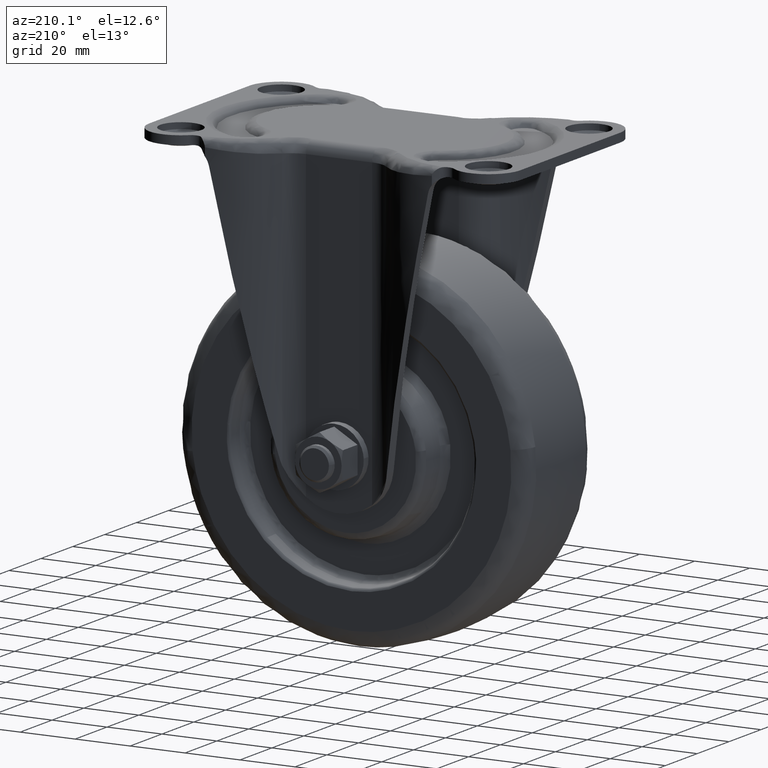
[diagram: clean part render]
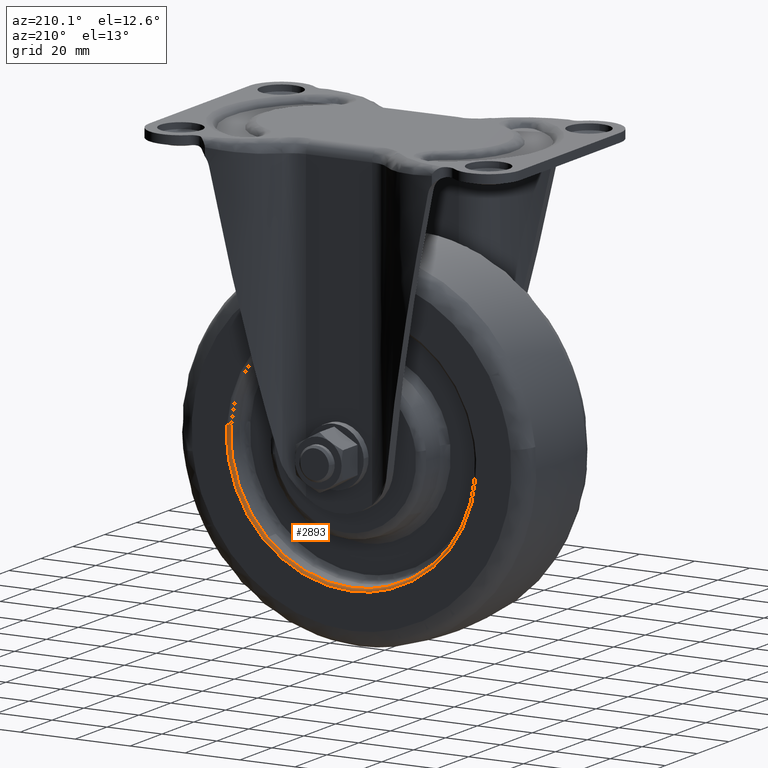
[diagram: same view with one face highlighted and labeled with its STEP entity id]
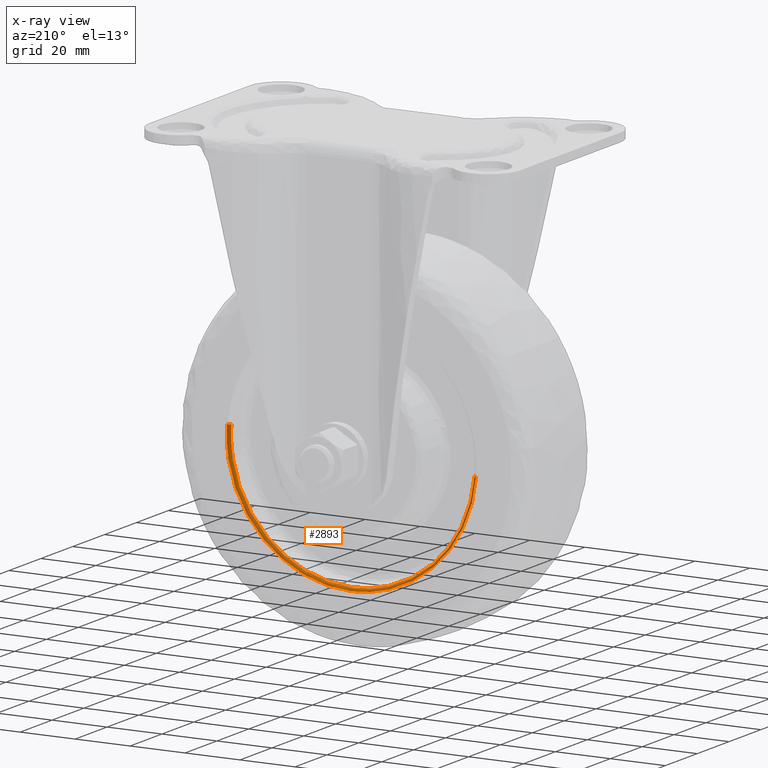
[diagram: x-ray of the same camera — body ghosted, the highlighted face saturated]
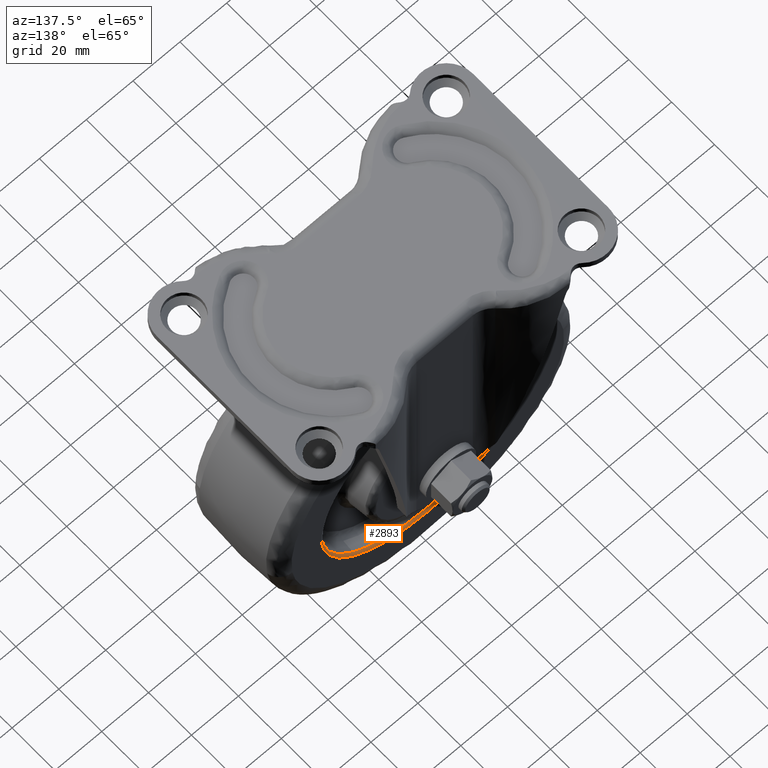
[diagram: same view with one face highlighted and labeled with its STEP entity id]
A machine part, auxiliary view. The second image highlights one B-rep face of the part: STEP entity #2893.
The next image is the same camera in x-ray: the body ghosted, the highlighted face saturated — about 0% of this face is hidden behind the body in this view.
A second angle (auxiliary view) of the same face is appended — the face is thin or edge-on in the first view.
In plain terms, the highlighted face is a freeform B-spline surface patch.
Its self-contained STEP definition (entity closure, byte-faithful):
#2664=CARTESIAN_POINT('',(31.138072531241111,20.081070976128650,-131.686332879060590));
#2665=VERTEX_POINT('',#2664);
#2671=CARTESIAN_POINT('',(0.0,20.081071865266200,-144.425254740001090));
#2672=VERTEX_POINT('',#2671);
#2673=CARTESIAN_POINT('',(0.0,20.081071865266200,-144.425254740001090));
#2674=CARTESIAN_POINT('',(18.174851516898833,20.081071420351972,-144.425254714113460));
#2675=CARTESIAN_POINT('',(31.138072531241118,20.081070976128650,-131.686332879060530));
#2683=(BOUNDED_CURVE()B_SPLINE_CURVE(2,(#2673,#2674,#2675),.UNSPECIFIED.,.F.,.U.)B_SPLINE_CURVE_WITH_KNOTS((3,3),(0.0,0.123683242245383),.UNSPECIFIED.)CURVE()GEOMETRIC_REPRESENTATION_ITEM()RATIONAL_B_SPLINE_CURVE((1.0,0.855096068261864,0.853569641255538))REPRESENTATION_ITEM(''));
#2684=EDGE_CURVE('',#2672,#2665,#2683,.T.);
#2686=CARTESIAN_POINT('',(-44.299038160962098,20.081071873030670,-103.346412524439200));
#2687=VERTEX_POINT('',#2686);
#2688=CARTESIAN_POINT('',(-44.299038160962098,20.081071873030677,-103.346412524439150));
#2689=CARTESIAN_POINT('',(-41.195883830743114,20.081071869148442,-144.425254740024800));
#2690=CARTESIAN_POINT('',(0.0,20.081071865266200,-144.425254740001090));
#2698=(BOUNDED_CURVE()B_SPLINE_CURVE(2,(#2688,#2689,#2690),.UNSPECIFIED.,.F.,.U.)B_SPLINE_CURVE_WITH_KNOTS((3,3),(0.763129840737896,1.0),.UNSPECIFIED.)CURVE()GEOMETRIC_REPRESENTATION_ITEM()RATIONAL_B_SPLINE_CURVE((0.970850634526707,0.722489346451469,1.0))REPRESENTATION_ITEM(''));
#2699=EDGE_CURVE('',#2687,#2672,#2698,.T.);
#2765=CARTESIAN_POINT('',(44.299038160962098,20.081071873030670,-96.653587475560840));
#2766=VERTEX_POINT('',#2765);
#2780=CARTESIAN_POINT('',(31.138072531241107,20.081070976128647,-131.686332879060610));
#2781=CARTESIAN_POINT('',(44.425254712577342,20.081071381419104,-118.629055389344240));
#2782=CARTESIAN_POINT('',(44.425254736410693,20.081071799074660,-99.999999995683041));
#2783=CARTESIAN_POINT('',(44.425254738554386,20.081071836640604,-98.324413481448062));
#2784=CARTESIAN_POINT('',(44.299038160962098,20.081071873030673,-96.653587475560840));
#2792=(BOUNDED_CURVE()B_SPLINE_CURVE(2,(#2780,#2781,#2782,#2783,#2784),.UNSPECIFIED.,.F.,.U.)B_SPLINE_CURVE_WITH_KNOTS((3,2,3),(0.123683242245383,0.250000000000000,0.263129840737896),.UNSPECIFIED.)CURVE()GEOMETRIC_REPRESENTATION_ITEM()RATIONAL_B_SPLINE_CURVE((0.853569641255538,0.852010712924684,1.0,0.984617434735079,0.970850634526708))REPRESENTATION_ITEM(''));
#2793=EDGE_CURVE('',#2665,#2766,#2792,.T.);
#2799=CARTESIAN_POINT('',(-44.389407874596145,20.014445048337212,-102.107804693694530));
#2800=CARTESIAN_POINT('',(-44.342906242442567,20.014445048337205,-102.723382588623200));
#2801=CARTESIAN_POINT('',(-40.949687382585417,20.014445048337205,-147.642032236974870));
#2802=CARTESIAN_POINT('',(3.346172427194726,20.014445048337205,-144.295859809780210));
#2803=CARTESIAN_POINT('',(47.642032236974856,20.014445048337205,-140.949687382585410));
#2804=CARTESIAN_POINT('',(44.248813377113954,20.014445048337212,-96.031037734183883));
#2805=CARTESIAN_POINT('',(44.202311744956688,20.014445048337208,-95.415459839206477));
#2806=CARTESIAN_POINT('',(-44.404620016489062,21.068214168777690,-102.108527033225930));
#2807=CARTESIAN_POINT('',(-44.358102448339466,21.068214168777704,-102.724315885198930));
#2808=CARTESIAN_POINT('',(-40.963720740648995,21.068214168777697,-147.658359045309480));
#2809=CARTESIAN_POINT('',(3.347319152330245,21.068214168777697,-144.311039892979210));
#2810=CARTESIAN_POINT('',(47.658359045309460,21.068214168777697,-140.963720740648990));
#2811=CARTESIAN_POINT('',(44.263977337615223,21.068214168777700,-96.029677580488510));
#2812=CARTESIAN_POINT('',(44.217459769461968,21.068214168777693,-95.413888728466802));
#2813=CARTESIAN_POINT('',(-45.455368566639798,20.997763083203157,-102.158421204649830));
#2814=CARTESIAN_POINT('',(-45.407750251151946,20.997763083203164,-102.788781496332670));
#2815=CARTESIAN_POINT('',(-41.933047134187149,20.997763083203154,-148.786100970605250));
#2816=CARTESIAN_POINT('',(3.426526918209039,20.997763083203157,-145.359574052396170));
#2817=CARTESIAN_POINT('',(48.786100970605219,20.997763083203154,-141.933047134187210));
#2818=CARTESIAN_POINT('',(45.311397853636606,20.997763083203161,-95.935727659863517));
#2819=CARTESIAN_POINT('',(45.263779538144995,20.997763083203161,-95.305367368130774));
#2827=(BOUNDED_SURFACE()B_SPLINE_SURFACE(2,2,((#2799,#2806,#2813),(#2800,#2807,#2814),(#2801,#2808,#2815),(#2802,#2809,#2816),(#2803,#2810,#2817),(#2804,#2811,#2818),(#2805,#2812,#2819)),.UNSPECIFIED.,.F.,.F.,.U.)B_SPLINE_SURFACE_WITH_KNOTS((3,1,2,1,3),(3,3),(0.0,1.507366639398271,76.875698611599418,152.244030583800590,153.751397223320310),(0.0,1.719008325990084),.UNSPECIFIED.)GEOMETRIC_REPRESENTATION_ITEM()RATIONAL_B_SPLINE_SURFACE(((0.925141760470643,0.635889128204360,0.922514120681186),(0.919785161964283,0.632207311103575,0.917172736287920),(0.646598638131770,0.444434638957999,0.644762132223206),(0.914428563457923,0.628525494002791,0.911831351894653),(0.646598638131770,0.444434638957999,0.644762132223206),(0.919785161964714,0.632207311103872,0.917172736288350),(0.925141760471506,0.635889128204953,0.922514120682047)))REPRESENTATION_ITEM('')SURFACE());
#2828=ORIENTED_EDGE('',*,*,#2699,.T.);
#2829=ORIENTED_EDGE('',*,*,#2684,.T.);
#2830=ORIENTED_EDGE('',*,*,#2793,.T.);
#2831=CARTESIAN_POINT('',(45.292914671028001,21.0,-96.578508626493374));
#2832=VERTEX_POINT('',#2831);
#2833=CARTESIAN_POINT('',(44.299038160962098,20.081071873030673,-96.653587475560840));
#2834=CARTESIAN_POINT('',(44.373571068757748,20.999999999738574,-96.647957153414865));
#2835=CARTESIAN_POINT('',(45.292914671027994,21.0,-96.578508626493374));
#2843=(BOUNDED_CURVE()B_SPLINE_CURVE(2,(#2833,#2834,#2835),.UNSPECIFIED.,.F.,.U.)B_SPLINE_CURVE_WITH_KNOTS((3,3),(-1.720017256204024,-0.287173656882986),.UNSPECIFIED.)CURVE()GEOMETRIC_REPRESENTATION_ITEM()RATIONAL_B_SPLINE_CURVE((0.889634900772027,0.653201199040266,0.887273604309555))REPRESENTATION_ITEM(''));
#2844=EDGE_CURVE('',#2766,#2832,#2843,.T.);
#2845=ORIENTED_EDGE('',*,*,#2844,.T.);
#2846=CARTESIAN_POINT('',(0.0,21.0,-145.421962998551290));
#2847=VERTEX_POINT('',#2846);
#2848=CARTESIAN_POINT('',(0.0,21.0,-145.421962998551290));
#2849=CARTESIAN_POINT('',(45.421962998420199,21.000000000000007,-145.421962998561180));
#2850=CARTESIAN_POINT('',(45.421962998278822,21.0,-100.000000000020610));
#2851=CARTESIAN_POINT('',(45.421962998273500,21.0,-98.286820656563819));
#2852=CARTESIAN_POINT('',(45.292914671028001,21.000000000000004,-96.578508626493374));
#2860=(BOUNDED_CURVE()B_SPLINE_CURVE(2,(#2848,#2849,#2850,#2851,#2852),.UNSPECIFIED.,.F.,.U.)B_SPLINE_CURVE_WITH_KNOTS((3,2,3),(0.0,0.250000000000000,0.263129840737801),.UNSPECIFIED.)CURVE()GEOMETRIC_REPRESENTATION_ITEM()RATIONAL_B_SPLINE_CURVE((1.0,0.707106781186547,1.0,0.984617434735190,0.970850634526905))REPRESENTATION_ITEM(''));
#2861=EDGE_CURVE('',#2847,#2832,#2860,.T.);
#2862=ORIENTED_EDGE('',*,*,#2861,.F.);
#2863=CARTESIAN_POINT('',(-45.292914671027987,21.0,-103.421491373506600));
#2864=VERTEX_POINT('',#2863);
#2865=CARTESIAN_POINT('',(-45.292914671027994,21.000000000000004,-103.421491373506630));
#2866=CARTESIAN_POINT('',(-42.120139141222126,20.999999999999993,-145.421962998540690));
#2867=CARTESIAN_POINT('',(0.0,21.0,-145.421962998551290));
#2875=(BOUNDED_CURVE()B_SPLINE_CURVE(2,(#2865,#2866,#2867),.UNSPECIFIED.,.F.,.U.)B_SPLINE_CURVE_WITH_KNOTS((3,3),(0.763129840737801,1.0),.UNSPECIFIED.)CURVE()GEOMETRIC_REPRESENTATION_ITEM()RATIONAL_B_SPLINE_CURVE((0.970850634526906,0.722489346451358,1.0))REPRESENTATION_ITEM(''));
#2876=EDGE_CURVE('',#2864,#2847,#2875,.T.);
#2877=ORIENTED_EDGE('',*,*,#2876,.F.);
#2878=CARTESIAN_POINT('',(-44.299038160962098,20.081071873030673,-103.346412524439160));
#2879=CARTESIAN_POINT('',(-44.373571068757741,20.999999999738581,-103.352042846585140));
#2880=CARTESIAN_POINT('',(-45.292914671028001,21.000000000000004,-103.421491373506600));
#2888=(BOUNDED_CURVE()B_SPLINE_CURVE(2,(#2878,#2879,#2880),.UNSPECIFIED.,.F.,.U.)B_SPLINE_CURVE_WITH_KNOTS((3,3),(-1.720017256204028,-0.287173656882985),.UNSPECIFIED.)CURVE()GEOMETRIC_REPRESENTATION_ITEM()RATIONAL_B_SPLINE_CURVE((0.889634900772028,0.653201199040266,0.887273604309555))REPRESENTATION_ITEM(''));
#2889=EDGE_CURVE('',#2687,#2864,#2888,.T.);
#2890=ORIENTED_EDGE('',*,*,#2889,.F.);
#2891=EDGE_LOOP('',(#2828,#2829,#2830,#2845,#2862,#2877,#2890));
#2892=FACE_OUTER_BOUND('',#2891,.T.);
#2893=ADVANCED_FACE('',(#2892),#2827,.T.);